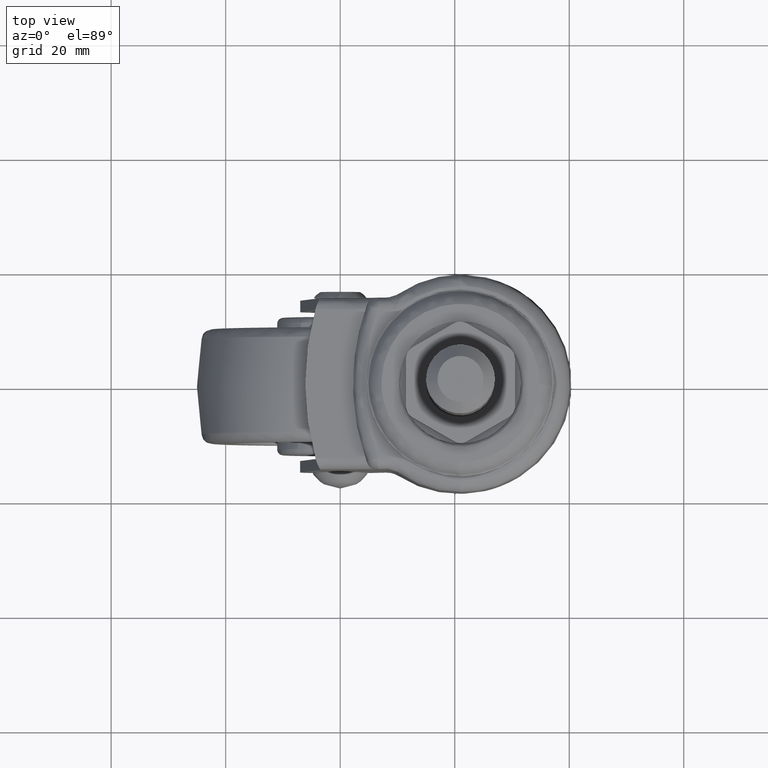
[diagram: clean part render]
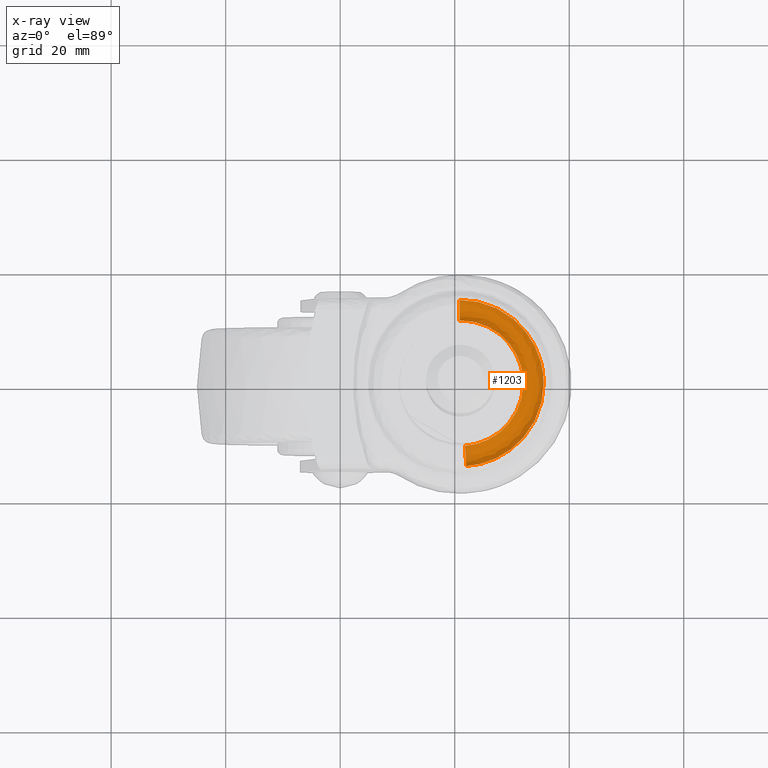
[diagram: x-ray — body ghosted, one internal face saturated and labeled with its STEP entity id]
A machine part, top view, then the same camera in x-ray: the body is ghosted and one INTERNAL B-rep face — a face not visible from any outside direction — is saturated and labeled: STEP entity #1203.
In plain terms, the highlighted face is a freeform B-spline surface patch.
Its self-contained STEP definition (entity closure, byte-faithful):
#1005=CARTESIAN_POINT('',(21.764962017830719,-10.943127321443340,33.959998999146663));
#1006=VERTEX_POINT('',#1005);
#1024=CARTESIAN_POINT('',(20.862152660146670,10.968965337107811,33.959998999615472));
#1025=VERTEX_POINT('',#1024);
#1039=CARTESIAN_POINT('',(20.817413322598860,14.529021290236580,33.959998999861646));
#1040=VERTEX_POINT('',#1039);
#1041=CARTESIAN_POINT('',(20.817413322598856,14.529021290236578,33.959998999861661));
#1042=CARTESIAN_POINT('',(20.825068704794269,13.919857408519970,32.959998999999996));
#1043=CARTESIAN_POINT('',(20.839782991487262,12.748993313598650,32.959999000000003));
#1044=CARTESIAN_POINT('',(20.854497278175479,11.578129219056542,32.959998999999996));
#1045=CARTESIAN_POINT('',(20.862152660146673,10.968965337107818,33.959998999615472));
#1053=(BOUNDED_CURVE()B_SPLINE_CURVE(2,(#1041,#1042,#1043,#1044,#1045),.UNSPECIFIED.,.F.,.U.)B_SPLINE_CURVE_WITH_KNOTS((3,2,3),(-3.628955501024245,-2.0,-0.371044499422451),.UNSPECIFIED.)CURVE()GEOMETRIC_REPRESENTATION_ITEM()RATIONAL_B_SPLINE_CURVE((0.943117863989856,0.846697266319366,1.0,0.846697266361406,0.943117863936974))REPRESENTATION_ITEM(''));
#1054=EDGE_CURVE('',#1040,#1025,#1053,.T.);
#1071=CARTESIAN_POINT('',(22.013235897731459,-14.494797361891139,33.959998999851827));
#1072=VERTEX_POINT('',#1071);
#1088=CARTESIAN_POINT('',(22.013235897731455,-14.494797361891145,33.959998999851827));
#1089=CARTESIAN_POINT('',(21.970753565182182,-13.887068400020038,32.959999000000003));
#1090=CARTESIAN_POINT('',(21.889098957586892,-12.718962341465506,32.959999000000010));
#1091=CARTESIAN_POINT('',(21.807444350067342,-11.550856283994603,32.959999000000003));
#1092=CARTESIAN_POINT('',(21.764962017830715,-10.943127321443340,33.959998999146663));
#1100=(BOUNDED_CURVE()B_SPLINE_CURVE(2,(#1088,#1089,#1090,#1091,#1092),.UNSPECIFIED.,.F.,.U.)B_SPLINE_CURVE_WITH_KNOTS((3,2,3),(-3.628955501006414,-2.0,-0.371044500273071),.UNSPECIFIED.)CURVE()GEOMETRIC_REPRESENTATION_ITEM()RATIONAL_B_SPLINE_CURVE((0.921903182881530,0.827651489346197,0.977505800795127,0.827651489463903,0.921903182733468))REPRESENTATION_ITEM(''));
#1101=EDGE_CURVE('',#1072,#1006,#1100,.T.);
#1106=CARTESIAN_POINT('',(20.816168403407080,14.628083607022106,34.142499958763501));
#1107=CARTESIAN_POINT('',(35.444252010429153,14.811915203615024,34.142499958763501));
#1108=CARTESIAN_POINT('',(35.628083607022099,0.183831596592931,34.142499958763501));
#1109=CARTESIAN_POINT('',(35.801685607627100,-13.630249476854544,34.142499958763494));
#1110=CARTESIAN_POINT('',(22.020144380546864,-14.593626331819426,34.142499958763494));
#1111=CARTESIAN_POINT('',(20.823300612563479,14.060550311460409,32.959999000000010));
#1112=CARTESIAN_POINT('',(34.883850924023889,14.237249698896932,32.959999000000010));
#1113=CARTESIAN_POINT('',(35.060550311460396,0.176699387436520,32.959999000000010));
#1114=CARTESIAN_POINT('',(35.227416985814457,-13.101429666089052,32.959999000000018));
#1115=CARTESIAN_POINT('',(21.980565313473267,-14.027429892914919,32.959999000000003));
#1116=CARTESIAN_POINT('',(20.839782991487262,12.748993313598650,32.959999000000003));
#1117=CARTESIAN_POINT('',(33.588776305085901,12.909210322111397,32.959999000000003));
#1118=CARTESIAN_POINT('',(33.748993313598653,0.160217008512748,32.959999000000003));
#1119=CARTESIAN_POINT('',(33.900294796718278,-11.879338682456133,32.959998999999996));
#1120=CARTESIAN_POINT('',(21.889098957586896,-12.718962341465506,32.959999000000018));
#1121=CARTESIAN_POINT('',(20.856265369091954,11.437436420699344,32.959999000000010));
#1122=CARTESIAN_POINT('',(32.293701789791307,11.581171051607384,32.959999000000003));
#1123=CARTESIAN_POINT('',(32.437436420699342,0.143734630908042,32.959999000000010));
#1124=CARTESIAN_POINT('',(32.573172713830225,-10.657247796625809,32.959999000000010));
#1125=CARTESIAN_POINT('',(21.797632609020464,-11.410494894731308,32.959998999999989));
#1126=CARTESIAN_POINT('',(20.863397578749669,10.869903085247877,34.142499823179392));
#1127=CARTESIAN_POINT('',(31.733300663997554,11.006505506498213,34.142499823179385));
#1128=CARTESIAN_POINT('',(31.869903085247877,0.136602421250335,34.142499823179392));
#1129=CARTESIAN_POINT('',(31.998904051654414,-10.128427948691561,34.142499823179378));
#1130=CARTESIAN_POINT('',(21.758053539165012,-10.844298416030989,34.142499823179399));
#1138=(BOUNDED_SURFACE()B_SPLINE_SURFACE(2,2,((#1106,#1111,#1116,#1121,#1126),(#1107,#1112,#1117,#1122,#1127),(#1108,#1113,#1118,#1123,#1128),(#1109,#1114,#1119,#1124,#1129),(#1110,#1115,#1120,#1125,#1130)),.UNSPECIFIED.,.F.,.F.,.U.)B_SPLINE_SURFACE_WITH_KNOTS((3,2,3),(3,2,3),(0.0,24.238516257573821,47.507491864844681),(0.0,2.404850508951281,4.809700857896782),.UNSPECIFIED.)GEOMETRIC_REPRESENTATION_ITEM()RATIONAL_B_SPLINE_SURFACE(((0.964874995593721,0.831382288586556,1.0,0.831382299805469,0.964874977829953),(0.682269652381660,0.587876054017945,0.707106781186548,0.587876061950914,0.682269639820779),(0.964874995593721,0.831382288586556,1.0,0.831382299805469,0.964874977829953),(0.693573866110142,0.597616303400689,0.718822509939086,0.597616311465097,0.693573853341146),(0.943170905235034,0.812681009771687,0.977505800795127,0.812681020738239,0.943170887870848)))REPRESENTATION_ITEM('')SURFACE());
#1139=CARTESIAN_POINT('',(31.969831468652501,0.0,33.959998999999897));
#1140=VERTEX_POINT('',#1139);
#1141=CARTESIAN_POINT('',(31.969831468652501,0.0,33.959998999999897));
#1142=CARTESIAN_POINT('',(31.969831468652508,-10.229772052353429,33.959998999999911));
#1143=CARTESIAN_POINT('',(21.764962017830722,-10.943127321443336,33.959998999146663));
#1151=(BOUNDED_CURVE()B_SPLINE_CURVE(2,(#1141,#1142,#1143),.UNSPECIFIED.,.F.,.U.)B_SPLINE_CURVE_WITH_KNOTS((3,3),(0.500000000000000,0.737833686527253),.UNSPECIFIED.)CURVE()GEOMETRIC_REPRESENTATION_ITEM()RATIONAL_B_SPLINE_CURVE((1.0,0.721360504043052,0.972879876370397))REPRESENTATION_ITEM(''));
#1152=EDGE_CURVE('',#1140,#1006,#1151,.T.);
#1153=ORIENTED_EDGE('',*,*,#1152,.T.);
#1154=ORIENTED_EDGE('',*,*,#1101,.F.);
#1155=CARTESIAN_POINT('',(35.530168531347442,0.0,33.959998999999897));
#1156=VERTEX_POINT('',#1155);
#1157=CARTESIAN_POINT('',(35.530168531347442,0.0,33.959998999999897));
#1158=CARTESIAN_POINT('',(35.530168531347435,-13.549917552273484,33.959998999999911));
#1159=CARTESIAN_POINT('',(22.013235897731459,-14.494797361891143,33.959998999851827));
#1167=(BOUNDED_CURVE()B_SPLINE_CURVE(2,(#1157,#1158,#1159),.UNSPECIFIED.,.F.,.U.)B_SPLINE_CURVE_WITH_KNOTS((3,3),(0.500000000000000,0.737833686532578),.UNSPECIFIED.)CURVE()GEOMETRIC_REPRESENTATION_ITEM()RATIONAL_B_SPLINE_CURVE((1.0,0.721360504036814,0.972879876381660))REPRESENTATION_ITEM(''));
#1168=EDGE_CURVE('',#1156,#1072,#1167,.T.);
#1169=ORIENTED_EDGE('',*,*,#1168,.F.);
#1170=CARTESIAN_POINT('',(20.817413322598867,14.529021290236576,33.959998999861661));
#1171=CARTESIAN_POINT('',(20.908703057024752,14.530168531347442,33.959998999999897));
#1172=CARTESIAN_POINT('',(21.0,14.530168531347440,33.959998999999897));
#1173=CARTESIAN_POINT('',(35.530168531347449,14.530168531347433,33.959998999999911));
#1174=CARTESIAN_POINT('',(35.530168531347442,0.0,33.959998999999897));
#1182=(BOUNDED_CURVE()B_SPLINE_CURVE(2,(#1170,#1171,#1172,#1173,#1174),.UNSPECIFIED.,.F.,.U.)B_SPLINE_CURVE_WITH_KNOTS((3,2,3),(0.247784295918691,0.250000000000000,0.500000000000000),.UNSPECIFIED.)CURVE()GEOMETRIC_REPRESENTATION_ITEM()RATIONAL_B_SPLINE_CURVE((0.994854295637022,0.997404141198749,1.0,0.707106781186548,1.0))REPRESENTATION_ITEM(''));
#1183=EDGE_CURVE('',#1040,#1156,#1182,.T.);
#1184=ORIENTED_EDGE('',*,*,#1183,.F.);
#1185=ORIENTED_EDGE('',*,*,#1054,.T.);
#1186=CARTESIAN_POINT('',(20.862152660146670,10.968965337107811,33.959998999615465));
#1187=CARTESIAN_POINT('',(20.931073608954932,10.969831468652496,33.959998999999904));
#1188=CARTESIAN_POINT('',(21.0,10.969831468652499,33.959998999999897));
#1189=CARTESIAN_POINT('',(31.969831468652504,10.969831468652501,33.959998999999911));
#1190=CARTESIAN_POINT('',(31.969831468652501,0.0,33.959998999999897));
#1198=(BOUNDED_CURVE()B_SPLINE_CURVE(2,(#1186,#1187,#1188,#1189,#1190),.UNSPECIFIED.,.F.,.U.)B_SPLINE_CURVE_WITH_KNOTS((3,2,3),(0.247784295918469,0.250000000000000,0.500000000000000),.UNSPECIFIED.)CURVE()GEOMETRIC_REPRESENTATION_ITEM()RATIONAL_B_SPLINE_CURVE((0.994854295636511,0.997404141198489,1.0,0.707106781186548,1.0))REPRESENTATION_ITEM(''));
#1199=EDGE_CURVE('',#1025,#1140,#1198,.T.);
#1200=ORIENTED_EDGE('',*,*,#1199,.T.);
#1201=EDGE_LOOP('',(#1153,#1154,#1169,#1184,#1185,#1200));
#1202=FACE_OUTER_BOUND('',#1201,.T.);
#1203=ADVANCED_FACE('',(#1202),#1138,.F.);